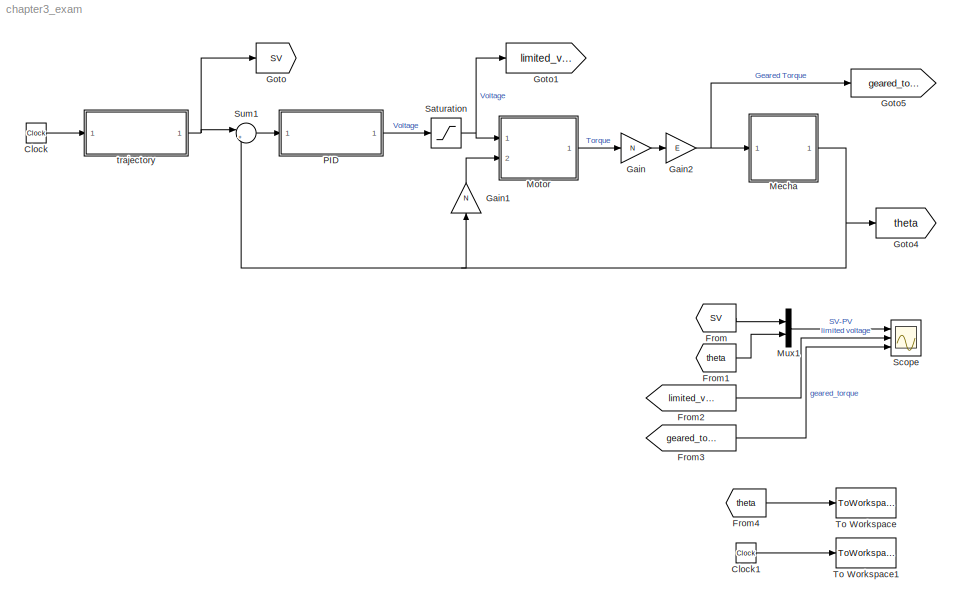
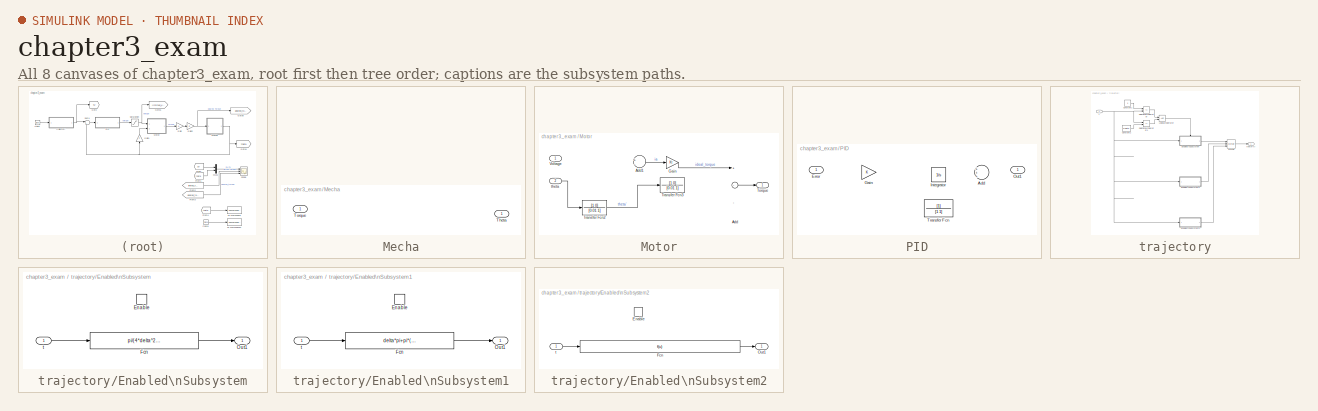
[diagram: thumbnail index - all 8 canvases of the model, root first then tree order]
MODEL chapter3_exam
KIND model
CONFIG PreLoadFcn = initialize_para;
BLOCK [Clock] Clock
  Decimation = 1
BLOCK [Clock] Clock1
  Decimation = 1
BLOCK [From] From
  CloseFcn = tagdialog Close
  GotoTag = SV
  TagVisibility = global
BLOCK [From] From1
  CloseFcn = tagdialog Close
  GotoTag = theta
  TagVisibility = global
BLOCK [From] From2
  CloseFcn = tagdialog Close
  GotoTag = limited_voltage
  TagVisibility = global
BLOCK [From] From3
  CloseFcn = tagdialog Close
  GotoTag = geared_torque
  TagVisibility = global
BLOCK [From] From4
  CloseFcn = tagdialog Close
  GotoTag = theta
  TagVisibility = global
BLOCK [Gain] Gain
  Gain = N
  OutDataTypeMode = Inherit via internal rule
  ParameterDataTypeMode = Inherit via internal rule
  SaturateOnIntegerOverflow = off
BLOCK [Gain] Gain1
  Gain = N
  OutDataTypeMode = Inherit via internal rule
  ParameterDataTypeMode = Inherit via internal rule
  SaturateOnIntegerOverflow = off
BLOCK [Gain] Gain2
  Gain = E
  OutDataTypeMode = Inherit via internal rule
  ParameterDataTypeMode = Inherit via internal rule
  SaturateOnIntegerOverflow = off
BLOCK [Goto] Goto
  GotoTag = SV
  TagVisibility = global
BLOCK [Goto] Goto1
  GotoTag = limited_voltage
  TagVisibility = global
BLOCK [Goto] Goto4
  GotoTag = theta
  TagVisibility = global
BLOCK [Goto] Goto5
  GotoTag = geared_torque
  TagVisibility = global
BLOCK [SubSystem] Mecha
  FunctionWithSeparateData = off
  MaskHideContents = off
  MinAlgLoopOccurrences = off
  Ports = [1, 1]
  RTWSystemCode = Auto
BLOCK [Outport] Mecha/Theta
  BusOutputAsStruct = off
  IconDisplay = Port number
BLOCK [Inport] Mecha/Torque
  IconDisplay = Port number
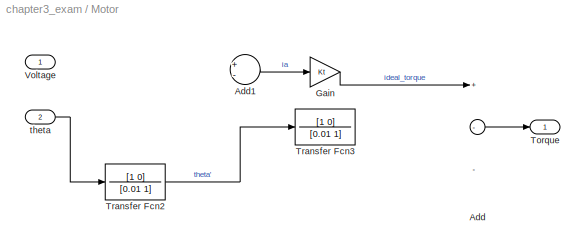
BLOCK [SubSystem] Motor
  FunctionWithSeparateData = off
  MaskHideContents = off
  MinAlgLoopOccurrences = off
  Ports = [2, 1]
  RTWSystemCode = Auto
BLOCK [Sum] Motor/Add
  InputSameDT = off
  Inputs = +--
  OutDataTypeMode = Inherit via internal rule
  OutScaling = 2^-10
  Ports = [3, 1]
  SaturateOnIntegerOverflow = off
BLOCK [Sum] Motor/Add1
  InputSameDT = off
  Inputs = +-
  OutDataTypeMode = Inherit via internal rule
  OutScaling = 2^-10
  Ports = [2, 1]
  SaturateOnIntegerOverflow = off
BLOCK [Gain] Motor/Gain
  Gain = Kt
  OutDataTypeMode = Inherit via internal rule
  ParameterDataTypeMode = Inherit via internal rule
  SaturateOnIntegerOverflow = off
BLOCK [Outport] Motor/Torque
  BusOutputAsStruct = off
  IconDisplay = Port number
BLOCK [TransferFcn] Motor/Transfer Fcn2
  Denominator = [0.01 1]
  Numerator = [1 0]
BLOCK [TransferFcn] Motor/Transfer Fcn3
  Denominator = [0.01 1]
  Numerator = [1 0]
BLOCK [Inport] Motor/Voltage
  IconDisplay = Port number
BLOCK [Inport] Motor/theta
  IconDisplay = Port number
  Port = 2
BLOCK [Mux] Mux1
  DisplayOption = bar
  Inputs = 2
  Ports = [2, 1]
BLOCK [SubSystem] PID
  FunctionWithSeparateData = off
  MaskHideContents = off
  MinAlgLoopOccurrences = off
  Ports = [1, 1]
  RTWSystemCode = Auto
BLOCK [Sum] PID/Add
  InputSameDT = off
  Inputs = +++
  OutDataTypeMode = Inherit via internal rule
  OutScaling = 2^-10
  Ports = [3, 1]
  SaturateOnIntegerOverflow = off
BLOCK [Inport] PID/Error
  IconDisplay = Port number
BLOCK [Gain] PID/Gain
  OutDataTypeMode = Inherit via internal rule
  ParameterDataTypeMode = Inherit via internal rule
  SaturateOnIntegerOverflow = off
BLOCK [Integrator] PID/Integrator
  IgnoreLimit = off
  Ports = [1, 1]
BLOCK [Outport] PID/Out1
  BusOutputAsStruct = off
  IconDisplay = Port number
BLOCK [TransferFcn] PID/Transfer Fcn
  Denominator = [1 1]
BLOCK [Saturate] Saturation
BLOCK [Scope] Scope
  DataFormat = StructureWithTime
  Floating = off
  LimitDataPoints = off
  NumInputPorts = 3
  Ports = [3]
  SampleTime = 0
  SaveToWorkspace = on
  TimeRange = 2.5
  YMax = 8~30~10
  YMin = 0~-20~-15
  ZoomMode = yonly
BLOCK [Sum] Sum1
  IconShape = round
  InputSameDT = off
  Inputs = |+-
  OutDataTypeMode = Inherit via internal rule
  Ports = [2, 1]
  SaturateOnIntegerOverflow = off
BLOCK [ToWorkspace] To Workspace
  MaxDataPoints = inf
  SampleTime = 0.1
  SaveFormat = Array
  VariableName = theta
BLOCK [ToWorkspace] To Workspace1
  MaxDataPoints = inf
  SampleTime = 0.1
  SaveFormat = Array
  VariableName = t
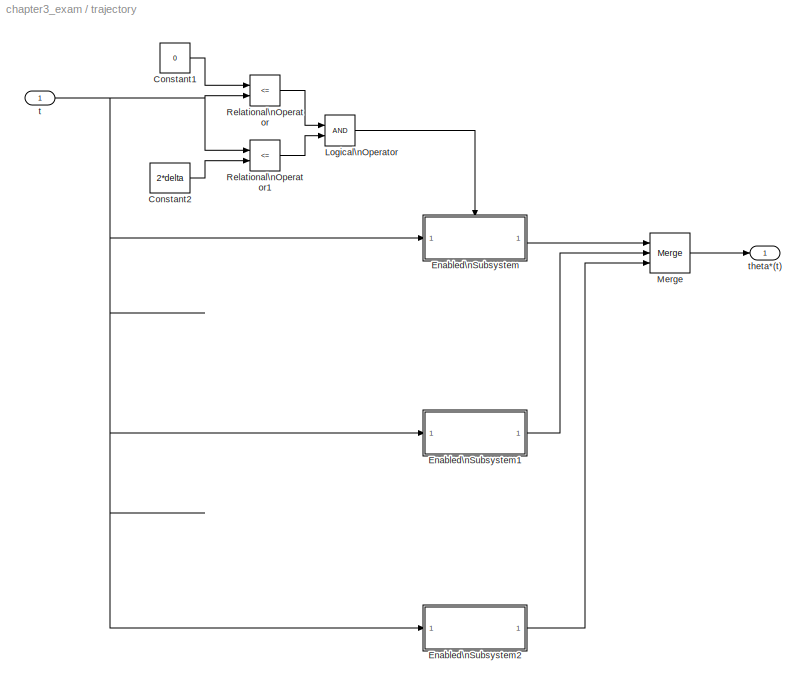
BLOCK [SubSystem] trajectory
  FunctionWithSeparateData = off
  MaskHideContents = off
  MinAlgLoopOccurrences = off
  Ports = [1, 1]
  RTWSystemCode = Auto
BLOCK [Constant] trajectory/Constant1
  ConRadixGroup = Use specified scaling
  FramePeriod = inf
  OutDataType = sfix(16)
  OutDataTypeMode = Inherit from 'Constant value'
  OutScaling = 2^0
  SampleTime = inf
  SamplingMode = Sample based
  Value = 0
  VectorParams1D = on
BLOCK [Constant] trajectory/Constant2
  ConRadixGroup = Use specified scaling
  FramePeriod = inf
  OutDataType = sfix(16)
  OutDataTypeMode = Inherit from 'Constant value'
  OutScaling = 2^0
  SampleTime = inf
  SamplingMode = Sample based
  Value = 2*delta
  VectorParams1D = on
BLOCK [SubSystem] trajectory/Enabled\nSubsystem
  FunctionWithSeparateData = off
  MaskHideContents = off
  MinAlgLoopOccurrences = off
  Ports = [1, 1, 1]
  RTWSystemCode = Auto
  TreatAsAtomicUnit = on
BLOCK [EnablePort] trajectory/Enabled\nSubsystem/Enable
  Ports = []
BLOCK [Fcn] trajectory/Enabled\nSubsystem/Fcn
  Expr = pi/(4*delta^2)*u[1]^3-pi/(16*delta^3)*u[1]^4
BLOCK [Outport] trajectory/Enabled\nSubsystem/Out1
  BusOutputAsStruct = off
  IconDisplay = Port number
BLOCK [Inport] trajectory/Enabled\nSubsystem/t
  IconDisplay = Port number and signal name
BLOCK [SubSystem] trajectory/Enabled\nSubsystem1
  FunctionWithSeparateData = off
  MaskHideContents = off
  MinAlgLoopOccurrences = off
  Ports = [1, 1, 1]
  RTWSystemCode = Auto
  TreatAsAtomicUnit = on
BLOCK [EnablePort] trajectory/Enabled\nSubsystem1/Enable
  Ports = []
BLOCK [Fcn] trajectory/Enabled\nSubsystem1/Fcn
  Expr = delta*pi+pi*(u[1]-2*delta)
BLOCK [Outport] trajectory/Enabled\nSubsystem1/Out1
  BusOutputAsStruct = off
  IconDisplay = Port number
BLOCK [Inport] trajectory/Enabled\nSubsystem1/t
  IconDisplay = Port number and signal name
BLOCK [SubSystem] trajectory/Enabled\nSubsystem2
  FunctionWithSeparateData = off
  MaskHideContents = off
  MinAlgLoopOccurrences = off
  Ports = [1, 1, 1]
  RTWSystemCode = Auto
  TreatAsAtomicUnit = on
BLOCK [EnablePort] trajectory/Enabled\nSubsystem2/Enable
  Ports = []
BLOCK [Fcn] trajectory/Enabled\nSubsystem2/Fcn
BLOCK [Outport] trajectory/Enabled\nSubsystem2/Out1
  BusOutputAsStruct = off
  IconDisplay = Port number
BLOCK [Inport] trajectory/Enabled\nSubsystem2/t
  IconDisplay = Port number and signal name
BLOCK [Logic] trajectory/Logical\nOperator
  AllPortsSameDT = off
  OutDataTypeMode = Boolean
  Ports = [2, 1]
BLOCK [Merge] trajectory/Merge
  Inputs = 3
  Ports = [3, 1]
BLOCK [RelationalOperator] trajectory/Relational\nOperator
  InputSameDT = off
  LogicOutDataTypeMode = Boolean
  Operator = <=
BLOCK [RelationalOperator] trajectory/Relational\nOperator1
  InputSameDT = off
  LogicOutDataTypeMode = Boolean
  Operator = <=
BLOCK [Inport] trajectory/t
  IconDisplay = Port number
BLOCK [Outport] trajectory/theta*(t)
  BusOutputAsStruct = off
  IconDisplay = Port number
LINE Clock1:1 -> To Workspace1:1
LINE Clock:1 -> trajectory:1
LINE From1:1 -> Mux1:2
LINE From2:1 -> Scope:2
LINE From3:1 -> Scope:3
LINE From4:1 -> To Workspace:1
LINE From:1 -> Mux1:1
LINE Gain1:1 -> Motor:2
NET Gain2:1 -> Goto5:1, Mecha:1
LINE Gain:1 -> Gain2:1
NET Mecha:1 -> Gain1:1, Goto4:1, Sum1:2
LINE Motor/Add1:1 -> Motor/Gain:1
LINE Motor/Add:1 -> Motor/Torque:1
LINE Motor/Gain:1 -> Motor/Add:1
LINE Motor/Transfer Fcn2:1 -> Motor/Transfer Fcn3:1
LINE Motor/theta:1 -> Motor/Transfer Fcn2:1
LINE Motor:1 -> Gain:1
LINE Mux1:1 -> Scope:1
LINE PID:1 -> Saturation:1
NET Saturation:1 -> Goto1:1, Motor:1
LINE Sum1:1 -> PID:1
LINE trajectory/Constant1:1 -> trajectory/Relational\nOperator:1
LINE trajectory/Constant2:1 -> trajectory/Relational\nOperator1:2
LINE trajectory/Enabled\nSubsystem/Fcn:1 -> trajectory/Enabled\nSubsystem/Out1:1
LINE trajectory/Enabled\nSubsystem/t:1 -> trajectory/Enabled\nSubsystem/Fcn:1
LINE trajectory/Enabled\nSubsystem1/Fcn:1 -> trajectory/Enabled\nSubsystem1/Out1:1
LINE trajectory/Enabled\nSubsystem1/t:1 -> trajectory/Enabled\nSubsystem1/Fcn:1
LINE trajectory/Enabled\nSubsystem1:1 -> trajectory/Merge:2
LINE trajectory/Enabled\nSubsystem2/Fcn:1 -> trajectory/Enabled\nSubsystem2/Out1:1
LINE trajectory/Enabled\nSubsystem2/t:1 -> trajectory/Enabled\nSubsystem2/Fcn:1
LINE trajectory/Enabled\nSubsystem2:1 -> trajectory/Merge:3
LINE trajectory/Enabled\nSubsystem:1 -> trajectory/Merge:1
LINE trajectory/Logical\nOperator:1 -> trajectory/Enabled\nSubsystem:enable
LINE trajectory/Merge:1 -> trajectory/theta*(t):1
LINE trajectory/Relational\nOperator1:1 -> trajectory/Logical\nOperator:2
LINE trajectory/Relational\nOperator:1 -> trajectory/Logical\nOperator:1
NET trajectory/t:1 -> trajectory/Enabled\nSubsystem1:1, trajectory/Enabled\nSubsystem2:1, trajectory/Enabled\nSubsystem:1, trajectory/Relational\nOperator1:1, trajectory/Relational\nOperator:2
NET trajectory:1 -> Goto:1, Sum1:1
note: NET lines group one-source signal fan-out (src -> all destinations, sorted); 1:1 wires keep LINE
